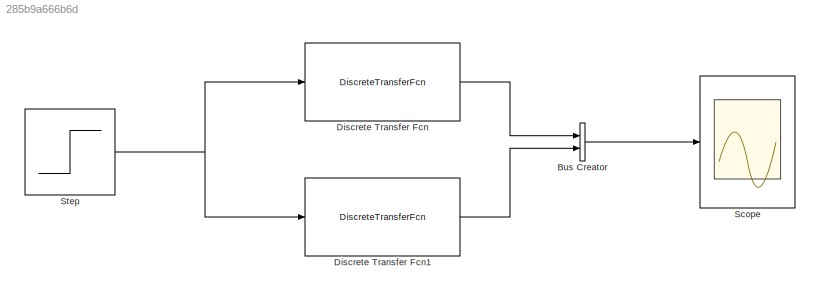
MODEL slx_285b9a666b6d
KIND model
CONFIG AbsTol = auto
CONFIG EnableMultiTasking = off
CONFIG FixedStep = auto
CONFIG MaxStep = auto
CONFIG MinStep = auto
CONFIG RelTol = 1e-3
CONFIG SampleTimeConstraint = Unconstrained
CONFIG SolverName = VariableStepAuto
CONFIG StartTime = 0.0
CONFIG StopTime = 1000.0
BLOCK [BusCreator] Bus Creator
  DisplayOption = bar
  InheritFromInputs = on
  Inputs = 2
  Ports = [2, 1]
BLOCK [DiscreteTransferFcn] Discrete Transfer Fcn
  Denominator = [1 -1.582 0.5916]
  InputPortMap = u0
  Numerator = [1.69 1.419]
  Ports = [1, 1]
BLOCK [DiscreteTransferFcn] Discrete Transfer Fcn1
  Denominator = [1 -0.9765]
  InputPortMap = u0
  Numerator = [7.623]
  Ports = [1, 1]
BLOCK [Scope] Scope
  Floating = off
  NumInputPorts = 1
  Ports = [1]
  ScopeSpecificationString = Simulink.scopes.TimeScopeBlockCfg('CurrentConfiguration', extmgr.ConfigurationSet(extmgr.Configuration('Core','General UI',true),extmgr.Configuration('Core','Source UI',true),extmgr.Configuration('Sources','WiredSimulink',true),extmgr.Configuration('Visuals','Time Domain',true,'SerializedDisplays',{struct('MinYLimReal','-40.19081','MaxYLimReal','361.71728','YLabelReal','','MinYLimMag','0.00000','M...<+1437ch>
BLOCK [Step] Step
  SampleTime = 5
LINE Bus Creator:1 -> Scope:1
LINE Discrete Transfer Fcn1:1 -> Bus Creator:2
LINE Discrete Transfer Fcn:1 -> Bus Creator:1
NET Step:1 -> Discrete Transfer Fcn1:1, Discrete Transfer Fcn:1
note: NET lines group one-source signal fan-out (src -> all destinations, sorted); 1:1 wires keep LINE
